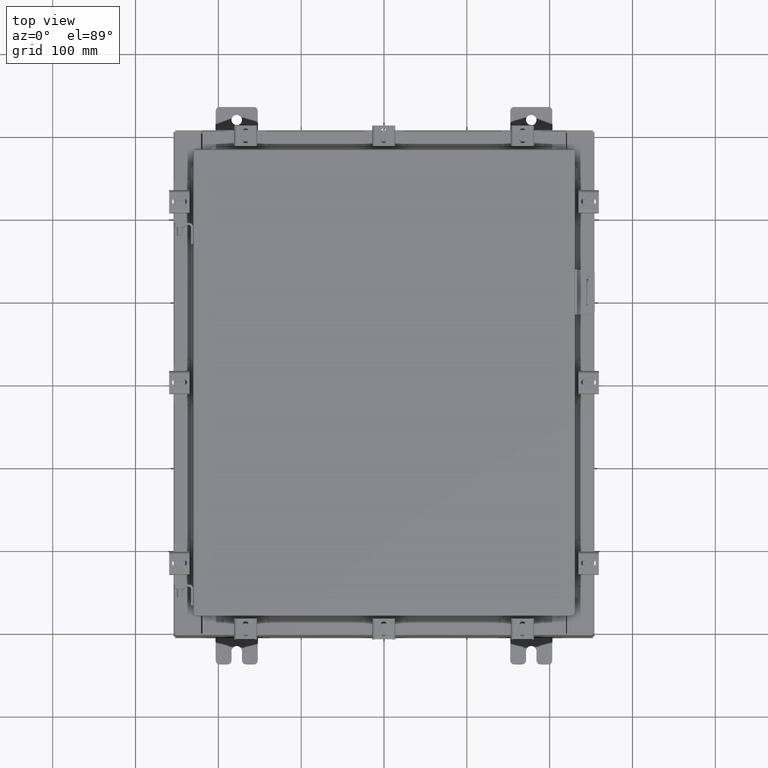
[diagram: clean part render]
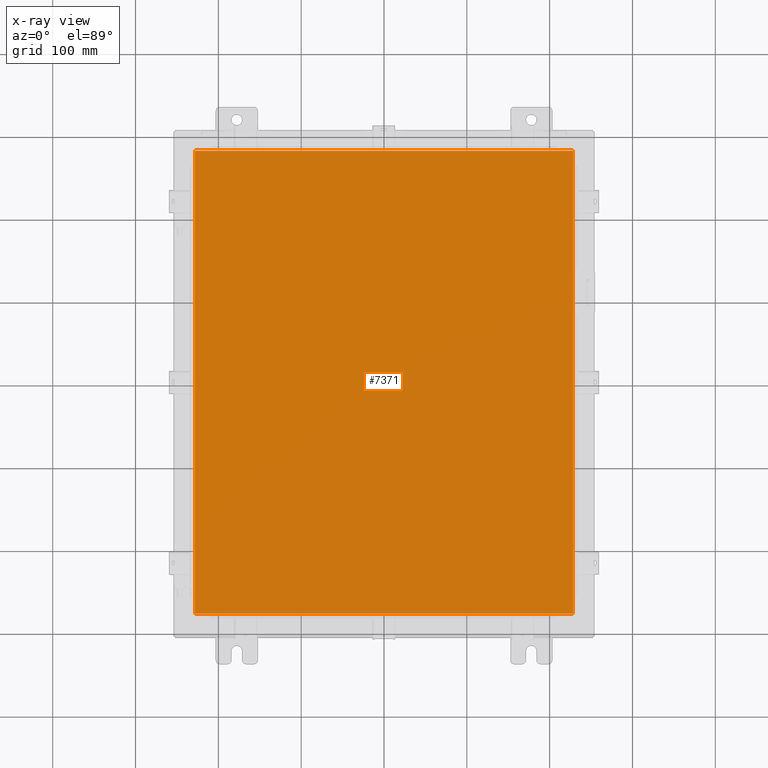
[diagram: x-ray — body ghosted, one internal face saturated and labeled with its STEP entity id]
A machine part, top view, then the same camera in x-ray: the body is ghosted and one INTERNAL B-rep face — a face not visible from any outside direction — is saturated and labeled: STEP entity #7371.
In plain terms, the highlighted planar face has unit normal (0, 0, -1).
Its self-contained STEP definition (entity closure, byte-faithful):
#313 = VECTOR ( 'NONE', #15623, 39.37007874015748100 ) ;
#1147 = VECTOR ( 'NONE', #14864, 39.37007874015748100 ) ;
#1269 = AXIS2_PLACEMENT_3D ( 'NONE', #10354, #15633, #5251 ) ;
#1577 = VERTEX_POINT ( 'NONE', #22280 ) ;
#3819 = VECTOR ( 'NONE', #9108, 39.37007874015748100 ) ;
#4345 = VECTOR ( 'NONE', #15857, 39.37007874015748100 ) ;
#4430 = CARTESIAN_POINT ( 'NONE',  ( 8.990299999999999500, -11.00630000000000000, -0.07470000000000000300 ) ) ;
#5251 = DIRECTION ( 'NONE',  ( -1.000000000000000000, 0.0000000000000000000, -0.0000000000000000000 ) ) ;
#5480 = CARTESIAN_POINT ( 'NONE',  ( 8.990299999999999500, -11.00630000000000000, -0.07470000000000073800 ) ) ;
#5790 = LINE ( 'NONE', #9589, #1147 ) ;
#7240 = ORIENTED_EDGE ( 'NONE', *, *, #15457, .F. ) ;
#7371 = ADVANCED_FACE ( 'NONE', ( #8301 ), #13892, .T. ) ;
#7533 = CARTESIAN_POINT ( 'NONE',  ( 8.990299999999999500, 11.00630000000000000, -0.07470000000000019700 ) ) ;
#8035 = VERTEX_POINT ( 'NONE', #22241 ) ;
#8301 = FACE_OUTER_BOUND ( 'NONE', #12901, .T. ) ;
#8656 = VERTEX_POINT ( 'NONE', #4430 ) ;
#8938 = LINE ( 'NONE', #5480, #4345 ) ;
#9108 = DIRECTION ( 'NONE',  ( -1.000000000000000000, -0.0000000000000000000, -0.0000000000000000000 ) ) ;
#9383 = VERTEX_POINT ( 'NONE', #18366 ) ;
#9589 = CARTESIAN_POINT ( 'NONE',  ( -8.990299999999999500, -11.00630000000000100, -0.07470000000000019700 ) ) ;
#10354 = CARTESIAN_POINT ( 'NONE',  ( 0.0000000000000000000, 0.0000000000000000000, -0.07470000000000000300 ) ) ;
#10531 = EDGE_CURVE ( 'NONE', #1577, #9383, #13032, .T. ) ;
#12625 = ORIENTED_EDGE ( 'NONE', *, *, #19297, .F. ) ;
#12901 = EDGE_LOOP ( 'NONE', ( #16269, #12625, #7240, #22037 ) ) ;
#13032 = LINE ( 'NONE', #7533, #3819 ) ;
#13886 = CARTESIAN_POINT ( 'NONE',  ( -8.990299999999999500, 11.00630000000000100, -0.07470000000000019700 ) ) ;
#13892 = PLANE ( 'NONE',  #1269 ) ;
#14864 = DIRECTION ( 'NONE',  ( 1.000000000000000000, -0.0000000000000000000, -0.0000000000000000000 ) ) ;
#15288 = LINE ( 'NONE', #13886, #313 ) ;
#15457 = EDGE_CURVE ( 'NONE', #9383, #8035, #15288, .T. ) ;
#15623 = DIRECTION ( 'NONE',  ( 0.0000000000000000000, -1.000000000000000000, 0.0000000000000000000 ) ) ;
#15633 = DIRECTION ( 'NONE',  ( 0.0000000000000000000, 0.0000000000000000000, -1.000000000000000000 ) ) ;
#15857 = DIRECTION ( 'NONE',  ( 0.0000000000000000000, 1.000000000000000000, 0.0000000000000000000 ) ) ;
#16269 = ORIENTED_EDGE ( 'NONE', *, *, #22258, .F. ) ;
#18366 = CARTESIAN_POINT ( 'NONE',  ( -8.990299999999999500, 11.00630000000000000, -0.07470000000000000300 ) ) ;
#19297 = EDGE_CURVE ( 'NONE', #8035, #8656, #5790, .T. ) ;
#22037 = ORIENTED_EDGE ( 'NONE', *, *, #10531, .F. ) ;
#22241 = CARTESIAN_POINT ( 'NONE',  ( -8.990299999999997700, -11.00630000000000100, -0.07470000000000000300 ) ) ;
#22258 = EDGE_CURVE ( 'NONE', #8656, #1577, #8938, .T. ) ;
#22280 = CARTESIAN_POINT ( 'NONE',  ( 8.990299999999997700, 11.00630000000000000, -0.07470000000000000300 ) ) ;